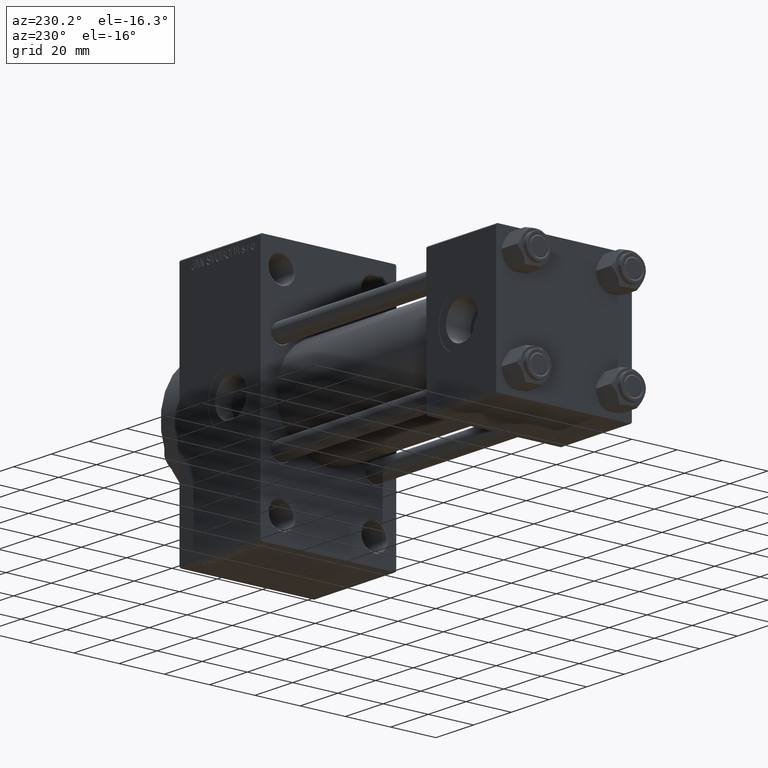
[diagram: clean part render]
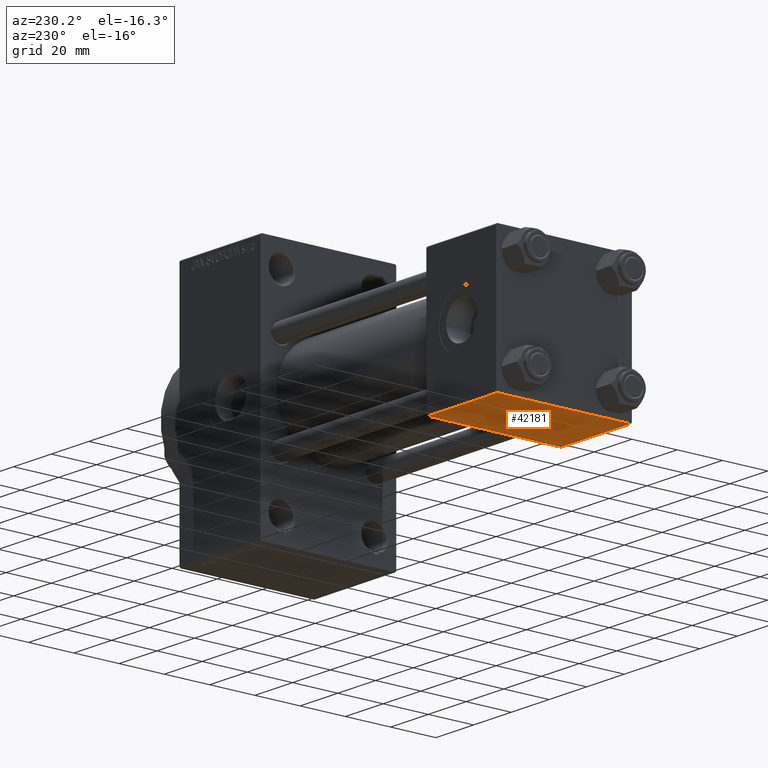
[diagram: same view with one face highlighted and labeled with its STEP entity id]
A machine part, auxiliary view. The second image highlights one B-rep face of the part: STEP entity #42181.
In plain terms, the highlighted planar face has unit normal (0, 0, -1).
Its self-contained STEP definition (entity closure, byte-faithful):
#1779 = PLANE ( 'NONE',  #2207 ) ;
#2207 = AXIS2_PLACEMENT_3D ( 'NONE', #23066, #37396, #40980 ) ;
#3585 = CARTESIAN_POINT ( 'NONE',  ( 0.000000000000000000, -29.50000000000000000, -30.00000000000000711 ) ) ;
#6312 = CARTESIAN_POINT ( 'NONE',  ( 37.00000000000000000, -29.50000000000000000, -30.00000000000000711 ) ) ;
#6731 = DIRECTION ( 'NONE',  ( 0.000000000000000000, -1.000000000000000000, -1.156482317317871725E-16 ) ) ;
#7840 = ORIENTED_EDGE ( 'NONE', *, *, #27602, .T. ) ;
#9799 = LINE ( 'NONE', #32035, #21245 ) ;
#10213 = DIRECTION ( 'NONE',  ( -1.000000000000000000, 0.000000000000000000, 0.000000000000000000 ) ) ;
#11031 = VERTEX_POINT ( 'NONE', #6312 ) ;
#12747 = EDGE_CURVE ( 'NONE', #42149, #37744, #28971, .T. ) ;
#15148 = VECTOR ( 'NONE', #10213, 1000.000000000000000 ) ;
#15890 = FACE_OUTER_BOUND ( 'NONE', #19657, .T. ) ;
#16236 = CARTESIAN_POINT ( 'NONE',  ( 37.00000000000000000, 29.49999999999997868, -30.00000000000000000 ) ) ;
#17148 = DIRECTION ( 'NONE',  ( 1.000000000000000000, 0.000000000000000000, 0.000000000000000000 ) ) ;
#17249 = CARTESIAN_POINT ( 'NONE',  ( 0.000000000000000000, 29.99999999999999289, -30.00000000000000000 ) ) ;
#19657 = EDGE_LOOP ( 'NONE', ( #44682, #7840, #33907, #45781 ) ) ;
#21245 = VECTOR ( 'NONE', #39673, 1000.000000000000000 ) ;
#23066 = CARTESIAN_POINT ( 'NONE',  ( 37.00000000000000000, 29.99999999999999289, -30.00000000000000000 ) ) ;
#23712 = VERTEX_POINT ( 'NONE', #16236 ) ;
#27602 = EDGE_CURVE ( 'NONE', #42149, #23712, #27915, .T. ) ;
#27915 = LINE ( 'NONE', #42476, #31682 ) ;
#28971 = LINE ( 'NONE', #17249, #42899 ) ;
#31682 = VECTOR ( 'NONE', #17148, 1000.000000000000000 ) ;
#31980 = LINE ( 'NONE', #42952, #15148 ) ;
#32035 = CARTESIAN_POINT ( 'NONE',  ( 37.00000000000000000, 29.99999999999999289, -30.00000000000000000 ) ) ;
#33907 = ORIENTED_EDGE ( 'NONE', *, *, #40911, .T. ) ;
#37396 = DIRECTION ( 'NONE',  ( 0.000000000000000000, 1.156482317317871725E-16, -1.000000000000000000 ) ) ;
#37744 = VERTEX_POINT ( 'NONE', #3585 ) ;
#39673 = DIRECTION ( 'NONE',  ( 0.000000000000000000, -1.000000000000000000, -1.156482317317871725E-16 ) ) ;
#40027 = CARTESIAN_POINT ( 'NONE',  ( 0.000000000000000000, 29.49999999999997868, -30.00000000000000000 ) ) ;
#40911 = EDGE_CURVE ( 'NONE', #23712, #11031, #9799, .T. ) ;
#40980 = DIRECTION ( 'NONE',  ( 0.000000000000000000, 1.000000000000000000, 1.156482317317871725E-16 ) ) ;
#41600 = EDGE_CURVE ( 'NONE', #11031, #37744, #31980, .T. ) ;
#42149 = VERTEX_POINT ( 'NONE', #40027 ) ;
#42181 = ADVANCED_FACE ( 'NONE', ( #15890 ), #1779, .T. ) ;
#42476 = CARTESIAN_POINT ( 'NONE',  ( 37.00000000000000000, 29.49999999999997868, -30.00000000000000000 ) ) ;
#42899 = VECTOR ( 'NONE', #6731, 1000.000000000000000 ) ;
#42952 = CARTESIAN_POINT ( 'NONE',  ( 0.000000000000000000, -29.50000000000001066, -30.00000000000000711 ) ) ;
#44682 = ORIENTED_EDGE ( 'NONE', *, *, #12747, .F. ) ;
#45781 = ORIENTED_EDGE ( 'NONE', *, *, #41600, .T. ) ;